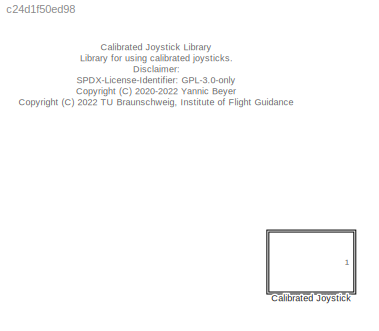
MODEL slx_c24d1f50ed98
KIND library
CONFIG AbsTol = auto
CONFIG EnableMultiTasking = off
CONFIG FixedStep = auto
CONFIG MaxStep = auto
CONFIG MinStep = auto
CONFIG RelTol = 1e-3
CONFIG SampleTimeConstraint = Unconstrained
CONFIG Solver = VariableStepAuto
CONFIG SolverName = VariableStepAuto
CONFIG StartTime = 0.0
CONFIG StopTime = 10.0
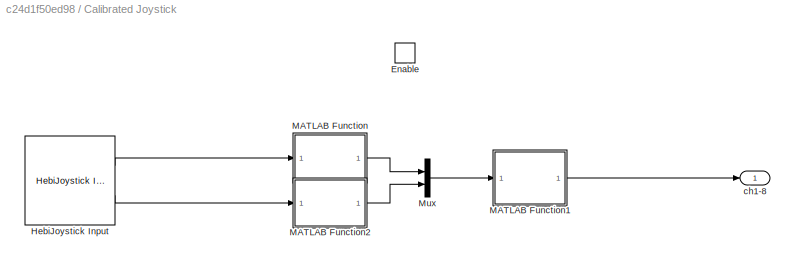
BLOCK [SubSystem] Calibrated Joystick
  Ports = [0, 1, 1]
  RequestExecContextInheritance = off
BLOCK [EnablePort] Calibrated Joystick/Enable
  Ports = []
BLOCK [Reference] Calibrated Joystick/HebiJoystick Input  REF=matlabinput_lib/HebiJoystick Input
  Ports = [0, 2]
  SourceBlock = matlabinput_lib/HebiJoystick Input
  SourceProductName = MatlabInput
  SourceType = HebiJoystick Input
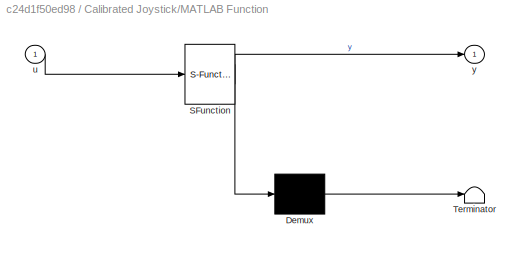
BLOCK [SubSystem] Calibrated Joystick/MATLAB Function
  ErrorFcn = Stateflow.Translate.translate
  PermitHierarchicalResolution = ExplicitOnly
  Ports = [1, 1]
  RequestExecContextInheritance = off
  SFBlockType = MATLAB Function
  TreatAsAtomicUnit = on
BLOCK [Demux] Calibrated Joystick/MATLAB Function/ Demux 
  Outputs = 1
  Ports = [1, 1]
BLOCK [S-Function] Calibrated Joystick/MATLAB Function/ SFunction 
  EnableBusSupport = on
  FunctionName = sf_sfun
  PortCounts = [1 2]
  Ports = [1, 2]
  SFcnIsStateOwnerBlock = off
  SFunctionDeploymentMode = off
  Tag = Stateflow S-Function joystick_lib 2
BLOCK [Terminator] Calibrated Joystick/MATLAB Function/ Terminator 
BLOCK [Inport] Calibrated Joystick/MATLAB Function/u
  IconDisplay = Port number
BLOCK [Outport] Calibrated Joystick/MATLAB Function/y
  IconDisplay = Port number
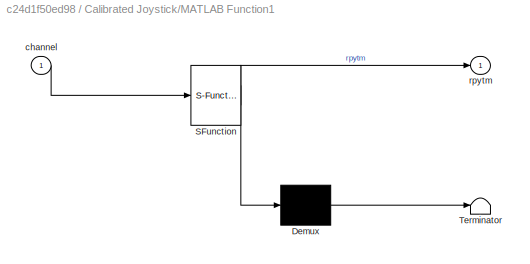
BLOCK [SubSystem] Calibrated Joystick/MATLAB Function1
  ErrorFcn = Stateflow.Translate.translate
  PermitHierarchicalResolution = ExplicitOnly
  Ports = [1, 1]
  RequestExecContextInheritance = off
  SFBlockType = MATLAB Function
  TreatAsAtomicUnit = on
BLOCK [Demux] Calibrated Joystick/MATLAB Function1/ Demux 
  Outputs = 1
  Ports = [1, 1]
BLOCK [S-Function] Calibrated Joystick/MATLAB Function1/ SFunction 
  EnableBusSupport = on
  FunctionName = sf_sfun
  Parameters = jystck
  PortCounts = [1 2]
  Ports = [1, 2]
  SFcnIsStateOwnerBlock = off
  SFunctionDeploymentMode = off
  Tag = Stateflow S-Function joystick_lib 1
BLOCK [Terminator] Calibrated Joystick/MATLAB Function1/ Terminator 
BLOCK [Inport] Calibrated Joystick/MATLAB Function1/channel
  IconDisplay = Port number
BLOCK [Outport] Calibrated Joystick/MATLAB Function1/rpytm
  IconDisplay = Port number
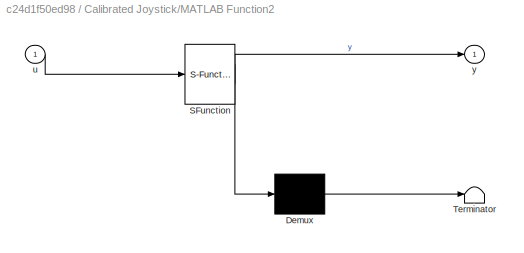
BLOCK [SubSystem] Calibrated Joystick/MATLAB Function2
  ErrorFcn = Stateflow.Translate.translate
  PermitHierarchicalResolution = ExplicitOnly
  Ports = [1, 1]
  RequestExecContextInheritance = off
  SFBlockType = MATLAB Function
  TreatAsAtomicUnit = on
BLOCK [Demux] Calibrated Joystick/MATLAB Function2/ Demux 
  Outputs = 1
  Ports = [1, 1]
BLOCK [S-Function] Calibrated Joystick/MATLAB Function2/ SFunction 
  EnableBusSupport = off
  FunctionName = sf_sfun
  PortCounts = [1 2]
  Ports = [1, 2]
  SFcnIsStateOwnerBlock = off
  SFunctionDeploymentMode = off
  Tag = Stateflow S-Function joystick_lib 3
BLOCK [Terminator] Calibrated Joystick/MATLAB Function2/ Terminator 
BLOCK [Inport] Calibrated Joystick/MATLAB Function2/u
  IconDisplay = Port number
BLOCK [Outport] Calibrated Joystick/MATLAB Function2/y
  IconDisplay = Port number
BLOCK [Mux] Calibrated Joystick/Mux
  DisplayOption = bar
  Inputs = 2
  Ports = [2, 1]
BLOCK [Outport] Calibrated Joystick/ch1-8
  IconDisplay = Port number
ANNOTATION (root): Calibrated Joystick Library Library for using calibrated joysticks. Disclaimer: SPDX-License-Identifier: GPL-3.0-only <copyright redacted>
LINE Calibrated Joystick/HebiJoystick Input:1 -> Calibrated Joystick/MATLAB Function:1
LINE Calibrated Joystick/HebiJoystick Input:2 -> Calibrated Joystick/MATLAB Function2:1
LINE Calibrated Joystick/MATLAB Function1:1 -> Calibrated Joystick/ch1-8:1
LINE Calibrated Joystick/MATLAB Function2:1 -> Calibrated Joystick/Mux:2
LINE Calibrated Joystick/MATLAB Function:1 -> Calibrated Joystick/Mux:1
LINE Calibrated Joystick/Mux:1 -> Calibrated Joystick/MATLAB Function1:1
CHART Calibrated Joystick/MATLAB Function1 states=1 transitions=1
  STATE_LABEL 'eML_blk_kernel()'
  STATE_LABEL 'SCRIPT:\nfunction rpytm = fcn( channel, jystck ) %#codegen\nrpytm = joystickCh2Rpyt( channel, jystck );\nend\n'
CHART Calibrated Joystick/MATLAB Function states=1 transitions=1
  STATE_LABEL 'eML_blk_kernel()'
  STATE_LABEL 'SCRIPT:\nfunction y = fcn(u)\n\ny = zeros(8,1);\ny(1:length(u)) = u;\n\nend'
CHART Calibrated Joystick/MATLAB Function2 states=1 transitions=1
  STATE_LABEL 'eML_blk_kernel()'
  STATE_LABEL 'SCRIPT:\nfunction y = fcn(u)\n\ny = zeros(8,1);\nif length(u) > length(y)\n    y(1:end) = u(1:8);\nelse\n    y(1:length(u)) = u;\nend\n\nend'
